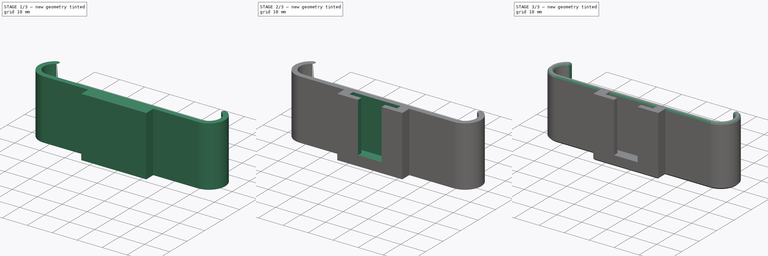
[diagram: build sequence overview — one tinted view per stage of 3, left to right]
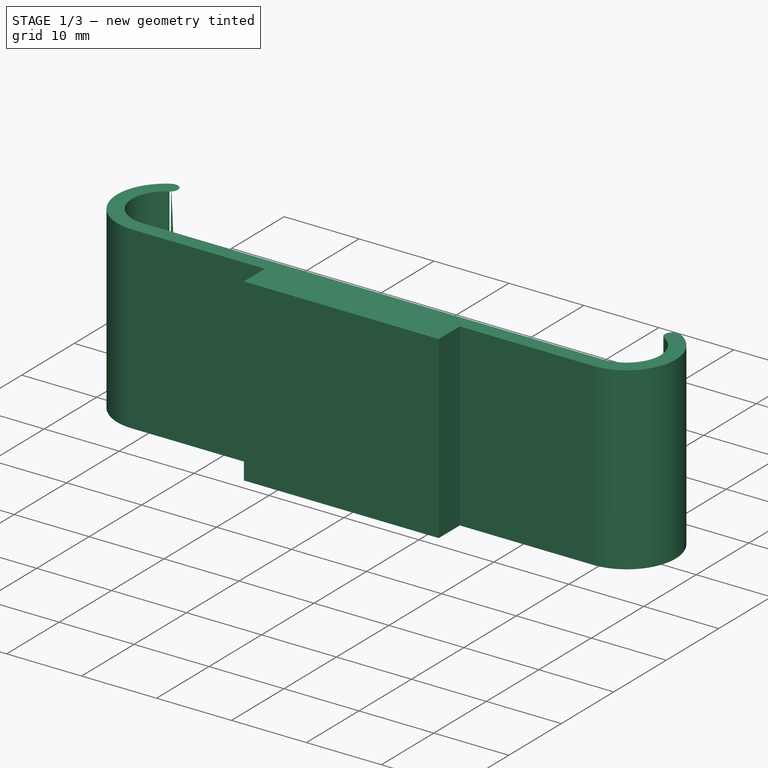
[diagram: stage 1 of 3 — iso view after this stage's code; geometry added in this stage tinted green]
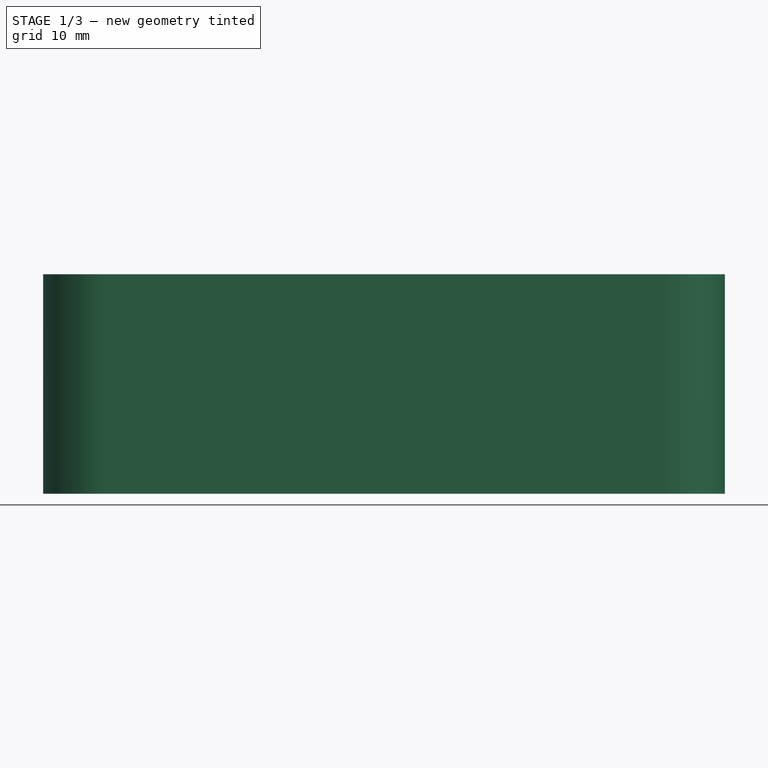
[diagram: stage 1 of 3 — front view after this stage's code; geometry added in this stage tinted green]
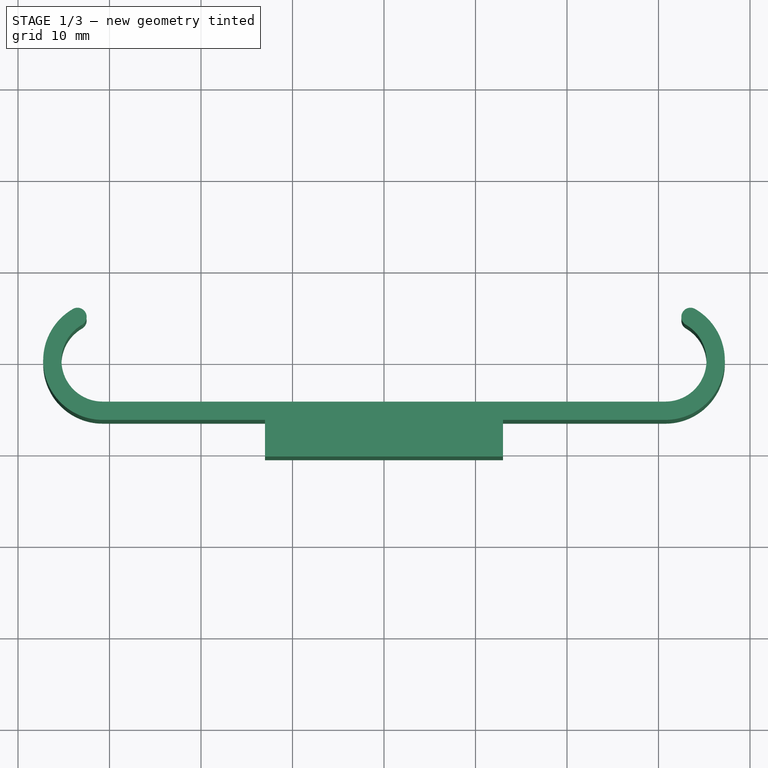
[diagram: stage 1 of 3 — top view after this stage's code; geometry added in this stage tinted green]
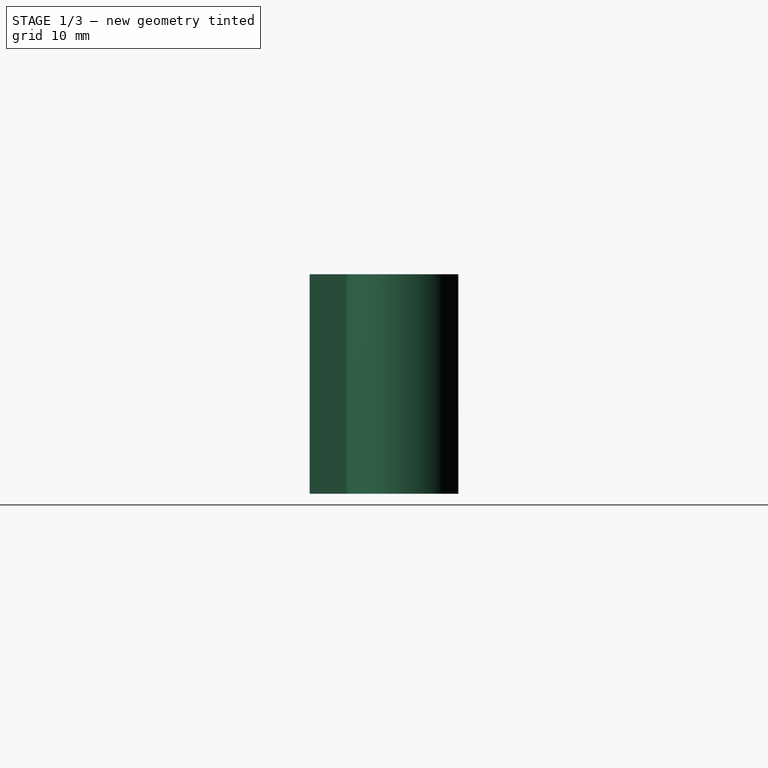
[diagram: stage 1 of 3 — right view after this stage's code; geometry added in this stage tinted green]
FCSTD DOCUMENT  (FreeCAD 0.19R23707 (Git))
Label: cold_shoe_smartphone_adapter_SM-530
License: All rights reserved
LicenseURL: http://en.wikipedia.org/wiki/All_rights_reserved
objects: Sketcher::SketchObject×3, PartDesign::Pad×2, PartDesign::ShapeBinder×2, PartDesign::Chamfer×2, PartDesign::Pocket×1, PartDesign::Body×1
note: 16 computed .brp shape members not serialized (recipe doc carries the construction recipe); baked Part::Feature solids carry a one-line shape summary decoded from their .brp

FEATURE [Sketcher::SketchObject] Sketch
  FullyConstrained = false
  MapMode = 5
  Support = -> [XY_Plane]
  sketch-geometry (20):
    g0: ArcOfCircle CenterX=-30.75 CenterY=0 CenterZ=0 NormalX=0 NormalY=0 NormalZ=1 AngleXU=0 Radius=4.5 StartAngle=1.5708 EndAngle=4.71239
    g1: ArcOfCircle CenterX=30.75 CenterY=0 CenterZ=0 NormalX=0 NormalY=0 NormalZ=1 AngleXU=0 Radius=4.5 StartAngle=4.71239 EndAngle=7.85398
    g2: LineSegment StartX=-30.75 StartY=-4.5 StartZ=0 EndX=30.75 EndY=-4.5 EndZ=0
    g3: LineSegment StartX=-30.75 StartY=4.5 StartZ=0 EndX=30.75 EndY=4.5 EndZ=0
    g4: ArcOfCircle CenterX=-30.75 CenterY=0 CenterZ=0 NormalX=0 NormalY=0 NormalZ=1 AngleXU=0 Radius=6.5 StartAngle=1.5708 EndAngle=4.71239
    g5: ArcOfCircle CenterX=30.75 CenterY=0 CenterZ=0 NormalX=0 NormalY=0 NormalZ=1 AngleXU=0 Radius=6.5 StartAngle=4.71239 EndAngle=7.85398
    g6: LineSegment StartX=-30.75 StartY=-6.5 StartZ=0 EndX=30.75 EndY=-6.5 EndZ=0
    g7: LineSegment StartX=-30.75 StartY=6.5 StartZ=0 EndX=30.75 EndY=6.5 EndZ=0
    g8: GeomPoint X=35.25 Y=0 Z=0
    g9: GeomPoint X=-35.25 Y=0 Z=0
    g10: LineSegment StartX=-30.75 StartY=-4.5 StartZ=0 EndX=30.75 EndY=-4.5 EndZ=0
    g11: LineSegment StartX=30.75 StartY=-6.5 StartZ=0 EndX=-30.75 EndY=-6.5 EndZ=0
    g12: LineSegment StartX=-30.75 StartY=0 StartZ=0 EndX=-36.2406 EndY=9.51005 EndZ=0
    g13: ArcOfCircle CenterX=-30.75 CenterY=0 CenterZ=0 NormalX=0 NormalY=0 NormalZ=1 AngleXU=0 Radius=4.5 StartAngle=2.0944 EndAngle=4.71239
    g14: ArcOfCircle CenterX=-30.75 CenterY=0 CenterZ=0 NormalX=0 NormalY=0 NormalZ=1 AngleXU=0 Radius=6.5 StartAngle=2.0944 EndAngle=4.71239
    g15: ArcOfCircle CenterX=-33.5 CenterY=4.76314 CenterZ=0 NormalX=0 NormalY=0 NormalZ=1 AngleXU=0 Radius=1 StartAngle=5.23599 EndAngle=8.37758
    g16: LineSegment StartX=30.75 StartY=0 StartZ=0 EndX=36.5121 EndY=9.98027 EndZ=0
    g17: ArcOfCircle CenterX=30.75 CenterY=0 CenterZ=0 NormalX=0 NormalY=0 NormalZ=1 AngleXU=0 Radius=4.5 StartAngle=4.71239 EndAngle=7.33038
    g18: ArcOfCircle CenterX=30.75 CenterY=0 CenterZ=0 NormalX=0 NormalY=0 NormalZ=1 AngleXU=0 Radius=6.5 StartAngle=4.71239 EndAngle=7.33038
    g19: ArcOfCircle CenterX=33.5 CenterY=4.76314 CenterZ=0 NormalX=0 NormalY=0 NormalZ=1 AngleXU=0 Radius=1 StartAngle=1.0472 EndAngle=4.18879
  constraints (47):
    c: Tangent(g0,g3) = 1.5708
    c: Tangent(g0,g2) = -1.5708
    c: Tangent(g2,g1) = -1.5708
    c: Tangent(g3,g1) = 1.5708
    c: Horizontal(g2)
    c: Symmetric(g1,g0,g-1)
    c: DistanceY(g1,g1) = 9
    c: Tangent(g4,g7) = 1.5708
    c: Tangent(g4,g6) = -1.5708
    c: Tangent(g6,g5) = -1.5708
    c: Tangent(g7,g5) = 1.5708
    c: Horizontal(g6)
    c: Coincident(g5,g1)
    c: Coincident(g4,g0)
    c: DistanceY(g5,g1) = 2
    c: PointOnObject(g8,g1)
    c: PointOnObject(g9,g0)
    c: PointOnObject(g9,g-1)
    c: PointOnObject(g8,g-1)
    c: DistanceX(g9,g8) = 70.5
    c: Coincident(g10,g0)
    c: Coincident(g10,g1)
    c: Coincident(g11,g5)
    c: Coincident(g11,g4)
    c: Coincident(g12,g0)
    c: Angle(g-1,g12) = 2.0944  'angle_opening'
    c: Horizontal(g3)
    c: PointOnObject(g13,g12)
    c: Coincident(g13,g10)
    c: Coincident(g13,g0)
    c: Coincident(g14,g13)
    c: Coincident(g14,g11)
    c: PointOnObject(g14,g12)
    c: PointOnObject(g15,g12)
    c: Coincident(g15,g14)
    c: Coincident(g15,g13)
    c: Coincident(g16,g1)
    c: Angle(g16,g-1) = 2.0944
    c: PointOnObject(g17,g16)
    c: Coincident(g17,g10)
    c: Coincident(g17,g1)
    c: Coincident(g18,g17)
    c: Coincident(g18,g11)
    c: PointOnObject(g18,g16)
    c: Coincident(g19,g18)
    c: Coincident(g19,g17)
    c: PointOnObject(g19,g16)
FEATURE [PartDesign::Pad] Pad
  Direction = (1,1,1)
  Length = 24
  Length2 = 100
  Profile = -> Sketch
  Type = 0
FEATURE [PartDesign::ShapeBinder] ShapeBinder
  Support = -> [Pad]
  TraceSupport = false
FEATURE [Sketcher::SketchObject] Sketch001
  ExternalGeometry = -> [Pad]
  FullyConstrained = true
  MapMode = 5
  Placement = pos=(0,-6.5,0) rot=(1,0,0;1.5708rad)
  Support = -> [ShapeBinder]
  sketch-geometry (5):
    g0: LineSegment StartX=-13 StartY=24 StartZ=0 EndX=13 EndY=24 EndZ=0
    g1: LineSegment StartX=13 StartY=24 StartZ=0 EndX=13 EndY=0 EndZ=0
    g2: LineSegment StartX=13 StartY=0 StartZ=0 EndX=-13 EndY=0 EndZ=0
    g3: LineSegment StartX=-13 StartY=0 StartZ=0 EndX=-13 EndY=24 EndZ=0
    g4: GeomPoint X=0 Y=12 Z=0
  constraints (13):
    c: Coincident(g0,g1)
    c: Coincident(g1,g2)
    c: Coincident(g2,g3)
    c: Coincident(g3,g0)
    c: Horizontal(g0)
    c: Horizontal(g2)
    c: Vertical(g1)
    c: Vertical(g3)
    c: PointOnObject(g1,g-1)
    c: PointOnObject(g4,g-2)
    c: Symmetric(g0,g2,g4)
    c: PointOnObject(g0,g-3)
    c: DistanceX(g0,g0) = 26
FEATURE [PartDesign::Pad] Pad001
  BaseFeature = -> Pad
  Direction = (1,1,1)
  Length = 4
  Length2 = 100
  Profile = -> Sketch001
  Type = 0
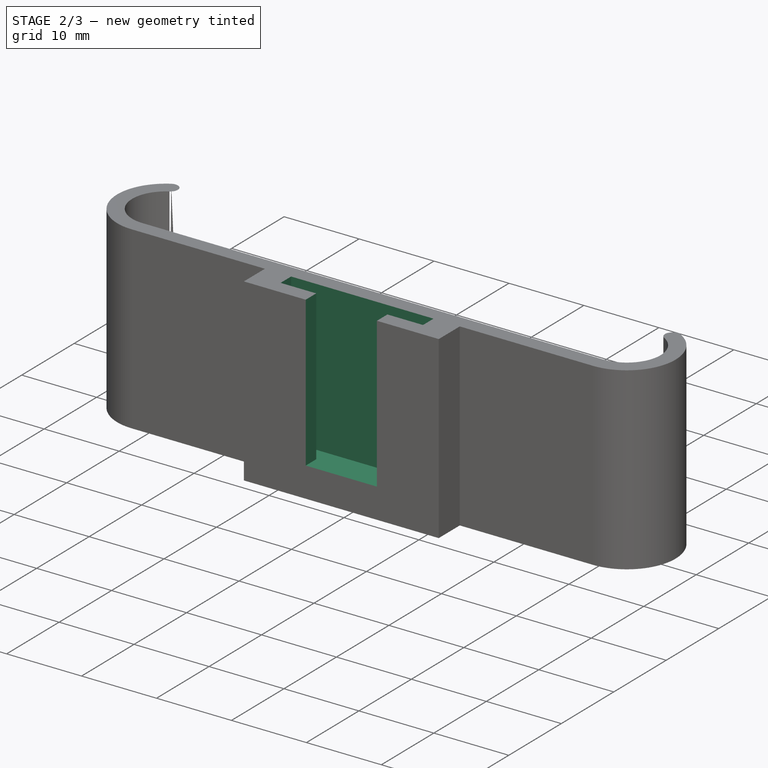
[diagram: stage 2 of 3 — iso view after this stage's code; geometry added in this stage tinted green]
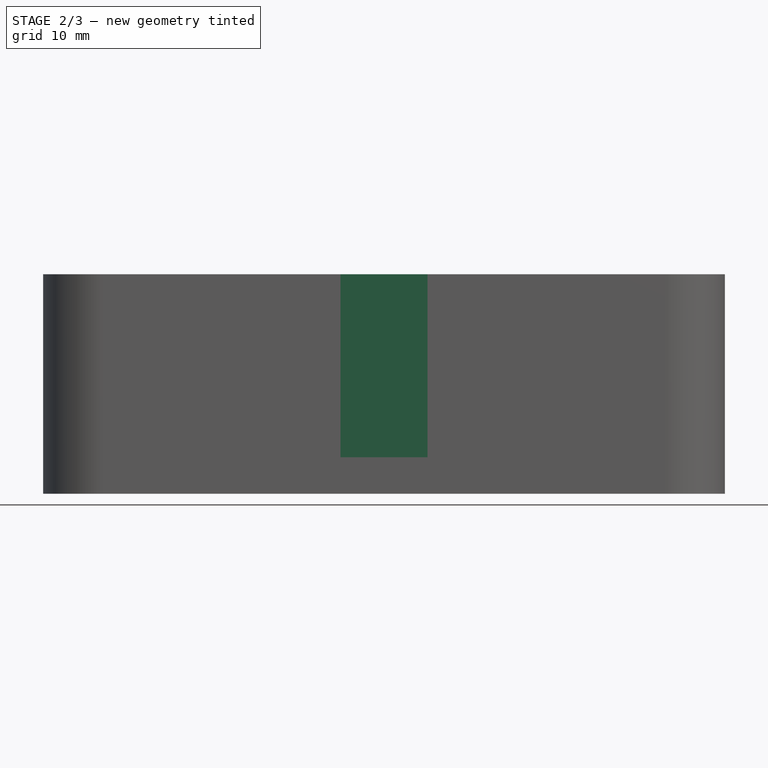
[diagram: stage 2 of 3 — front view after this stage's code; geometry added in this stage tinted green]
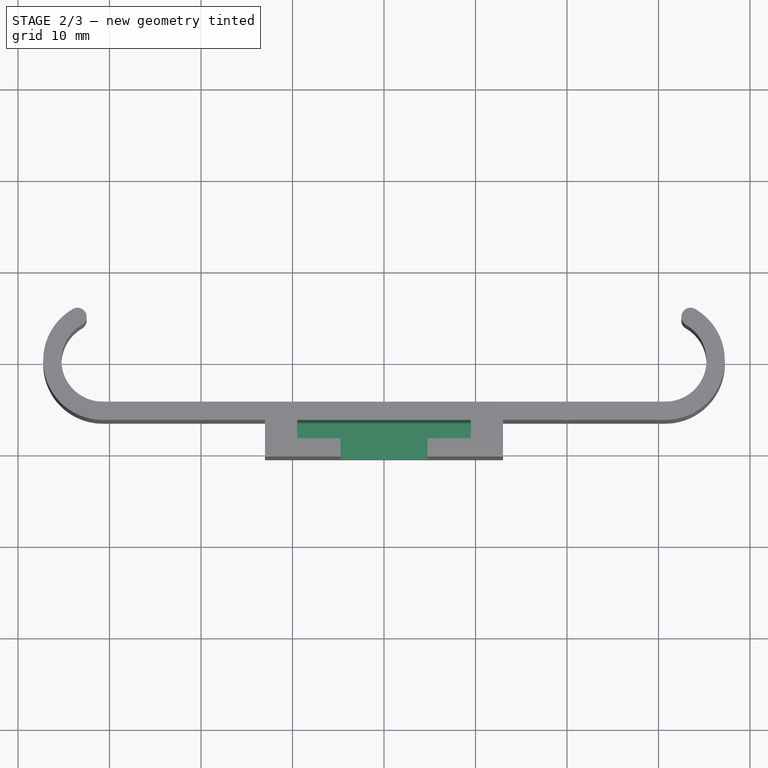
[diagram: stage 2 of 3 — top view after this stage's code; geometry added in this stage tinted green]
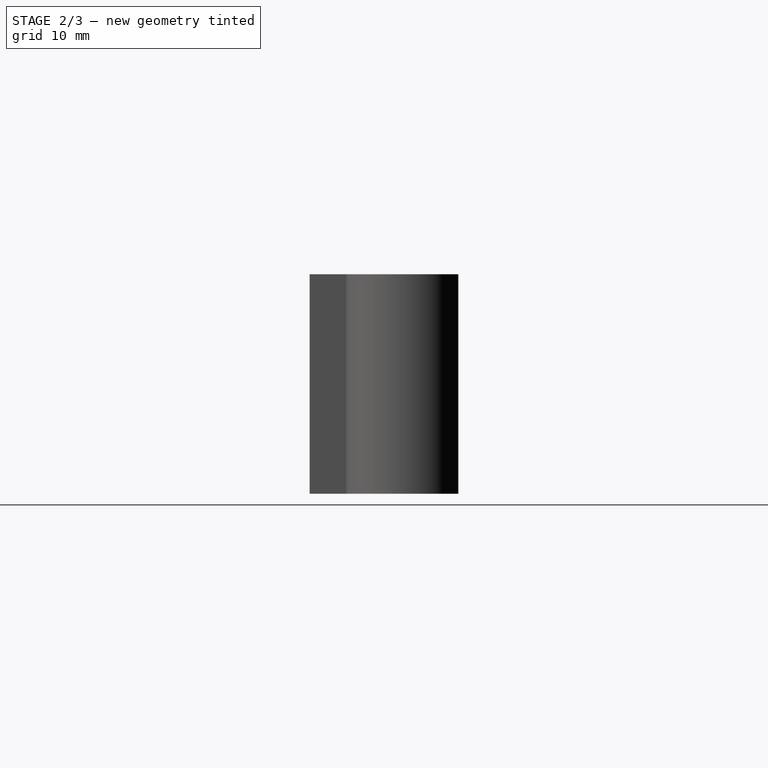
[diagram: stage 2 of 3 — right view after this stage's code; geometry added in this stage tinted green]
FEATURE [PartDesign::ShapeBinder] ShapeBinder001
  Support = -> [Pad001]
  TraceSupport = false
FEATURE [Sketcher::SketchObject] Sketch002
  ExternalGeometry = -> [Pad001]
  FullyConstrained = true
  MapMode = 5
  Placement = pos=(0,5.3e-15,24) rot=(0,0,1;0rad)
  Support = -> [ShapeBinder001]
  sketch-geometry (16):
    g0: LineSegment StartX=-9.5 StartY=-6.5 StartZ=0 EndX=9.5 EndY=-6.5 EndZ=0
    g1: LineSegment StartX=9.5 StartY=-6.5 StartZ=0 EndX=9.5 EndY=-8.5 EndZ=0
    g2: LineSegment StartX=9.5 StartY=-8.5 StartZ=0 EndX=-9.5 EndY=-8.5 EndZ=0
    g3: LineSegment StartX=-9.5 StartY=-8.5 StartZ=0 EndX=-9.5 EndY=-6.5 EndZ=0
    g4: LineSegment StartX=-4.75 StartY=-10.5 StartZ=0 EndX=4.75 EndY=-10.5 EndZ=0
    g5: LineSegment StartX=4.75 StartY=-10.5 StartZ=0 EndX=4.75 EndY=-8.5 EndZ=0
    g6: LineSegment StartX=4.75 StartY=-8.5 StartZ=0 EndX=-4.75 EndY=-8.5 EndZ=0
    g7: LineSegment StartX=-4.75 StartY=-8.5 StartZ=0 EndX=-4.75 EndY=-10.5 EndZ=0
    g8: LineSegment StartX=-9.5 StartY=-8.5 StartZ=0 EndX=-9.5 EndY=-6.5 EndZ=0
    g9: LineSegment StartX=-9.5 StartY=-6.5 StartZ=0 EndX=9.5 EndY=-6.5 EndZ=0
    g10: LineSegment StartX=9.5 StartY=-6.5 StartZ=0 EndX=9.5 EndY=-8.5 EndZ=0
    g11: LineSegment StartX=9.5 StartY=-8.5 StartZ=0 EndX=4.75 EndY=-8.5 EndZ=0
    g12: LineSegment StartX=4.75 StartY=-8.5 StartZ=0 EndX=4.75 EndY=-10.5 EndZ=0
    g13: LineSegment StartX=4.75 StartY=-10.5 StartZ=0 EndX=-4.75 EndY=-10.5 EndZ=0
    g14: LineSegment StartX=-4.75 StartY=-10.5 StartZ=0 EndX=-4.75 EndY=-8.5 EndZ=0
    g15: LineSegment StartX=-4.75 StartY=-8.5 StartZ=0 EndX=-9.5 EndY=-8.5 EndZ=0
  constraints (38):
    c: Coincident(g0,g1)
    c: Coincident(g1,g2)
    c: Coincident(g2,g3)
    c: Coincident(g3,g0)
    c: Horizontal(g0)
    c: Vertical(g1)
    c: Vertical(g3)
    c: Coincident(g4,g5)
    c: Coincident(g5,g6)
    c: Coincident(g6,g7)
    c: Coincident(g7,g4)
    c: Horizontal(g6)
    c: Vertical(g5)
    c: Vertical(g7)
    c: PointOnObject(g5,g2)
    c: Symmetric(g4,g4,g-2)
    c: Symmetric(g1,g2,g-2)
    c: DistanceY(g5,g5) = 2
    c: PointOnObject(g4,g-3)
    c: DistanceY(g1,g1) = 2
    c: DistanceX(g0,g0) = 19
    c: DistanceX(g4,g4) = 9.5
    c: Coincident(g2,g8)
    c: Coincident(g8,g0)
    c: Coincident(g8,g9)
    c: Coincident(g9,g0)
    c: Coincident(g9,g10)
    c: Coincident(g10,g1)
    c: Coincident(g10,g11)
    c: Coincident(g11,g5)
    c: Coincident(g11,g12)
    c: Coincident(g12,g4)
    c: Coincident(g12,g13)
    c: Coincident(g13,g4)
    c: Coincident(g13,g14)
    c: Coincident(g14,g6)
    c: Coincident(g14,g15)
    c: Coincident(g15,g8)
FEATURE [PartDesign::Pocket] Pocket
  BaseFeature = -> Pad001
  Length = 20
  Length2 = 100
  Profile = -> Sketch002
  Type = 0
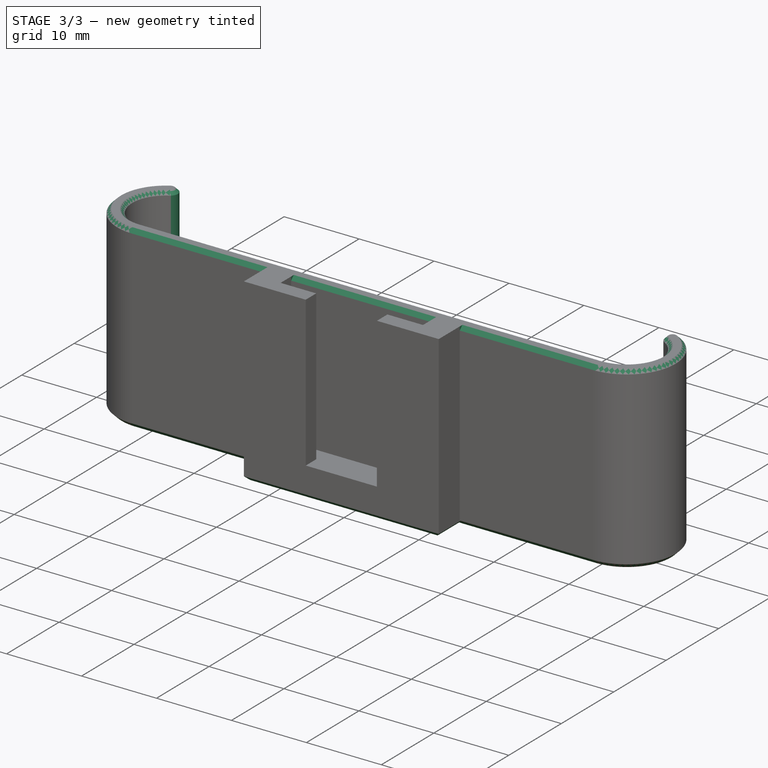
[diagram: stage 3 of 3 — iso view after this stage's code; geometry added in this stage tinted green]
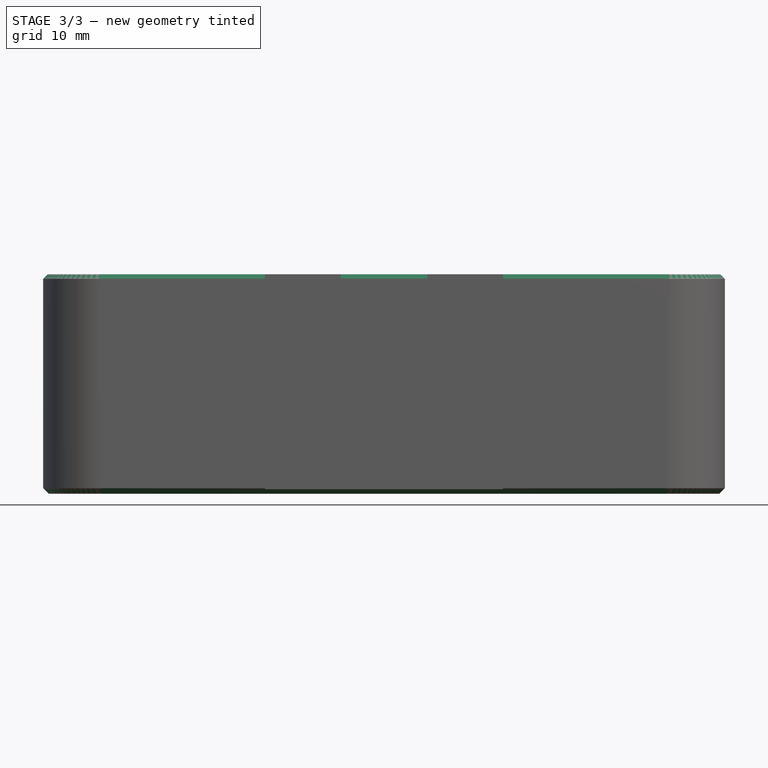
[diagram: stage 3 of 3 — front view after this stage's code; geometry added in this stage tinted green]
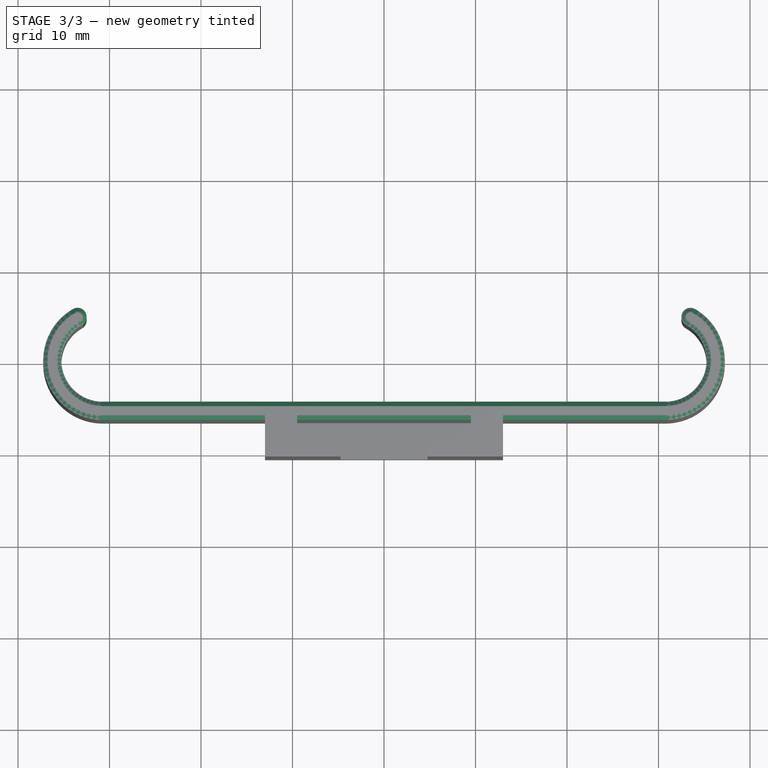
[diagram: stage 3 of 3 — top view after this stage's code; geometry added in this stage tinted green]
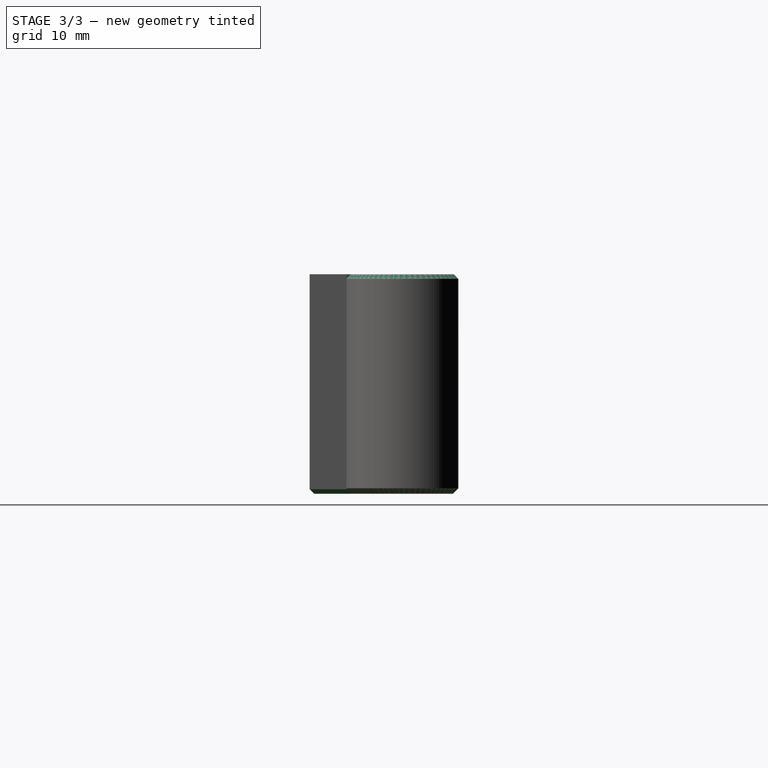
[diagram: stage 3 of 3 — right view after this stage's code; geometry added in this stage tinted green]
FEATURE [PartDesign::Chamfer] Chamfer
  Angle = 45
  Base = -> Pocket [Face4]
  BaseFeature = -> Pocket
  ChamferType = 0
  FlipDirection = false
  Size = 0.6
  Size2 = 1
  SupportTransform = false
FEATURE [PartDesign::Chamfer] Chamfer001
  Angle = 45
  Base = -> Chamfer [Face4,Face20]
  BaseFeature = -> Chamfer
  ChamferType = 0
  FlipDirection = false
  Size = 0.5
  Size2 = 1
  SupportTransform = false
FEATURE [PartDesign::Body] Body
  Group = -> [Sketch,Pad,ShapeBinder,Sketch001,Pad001,ShapeBinder001,Sketch002,Pocket,Chamfer,Chamfer001]
  Origin = -> Origin
  Tip = -> Chamfer001
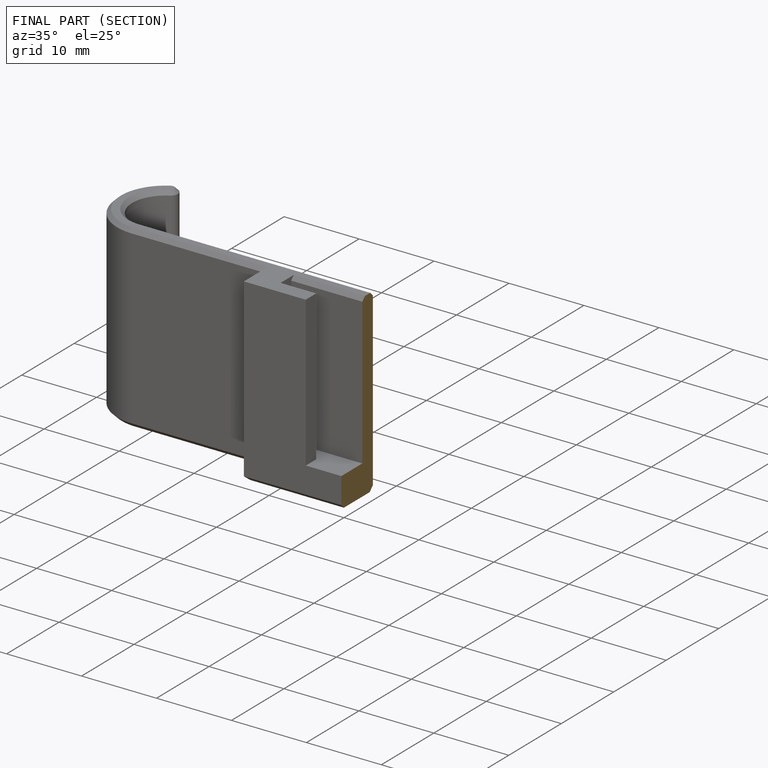
[diagram: finished part — half-section view (interior)]
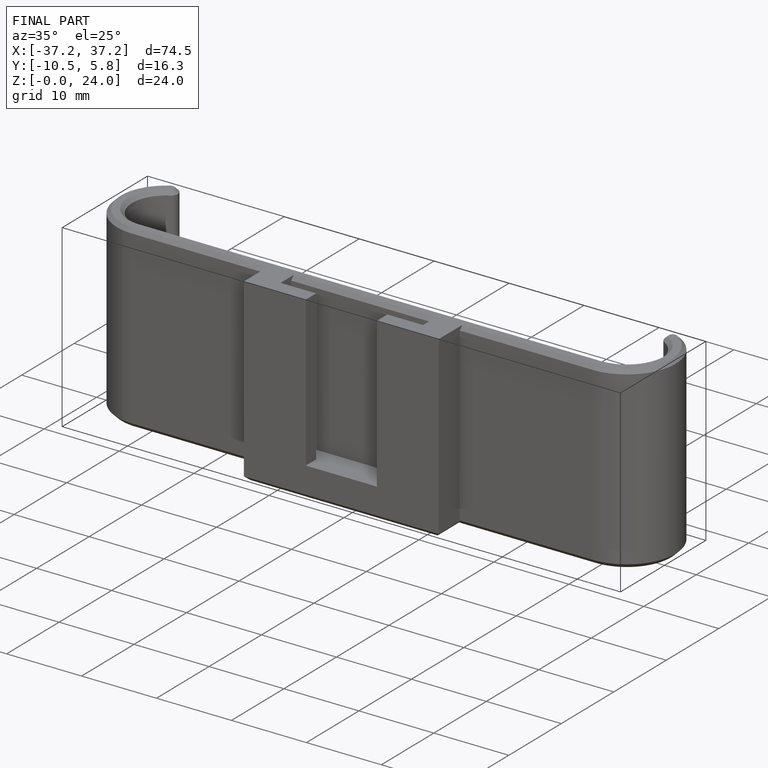
[diagram: finished part — iso view with bounding-box wireframe]
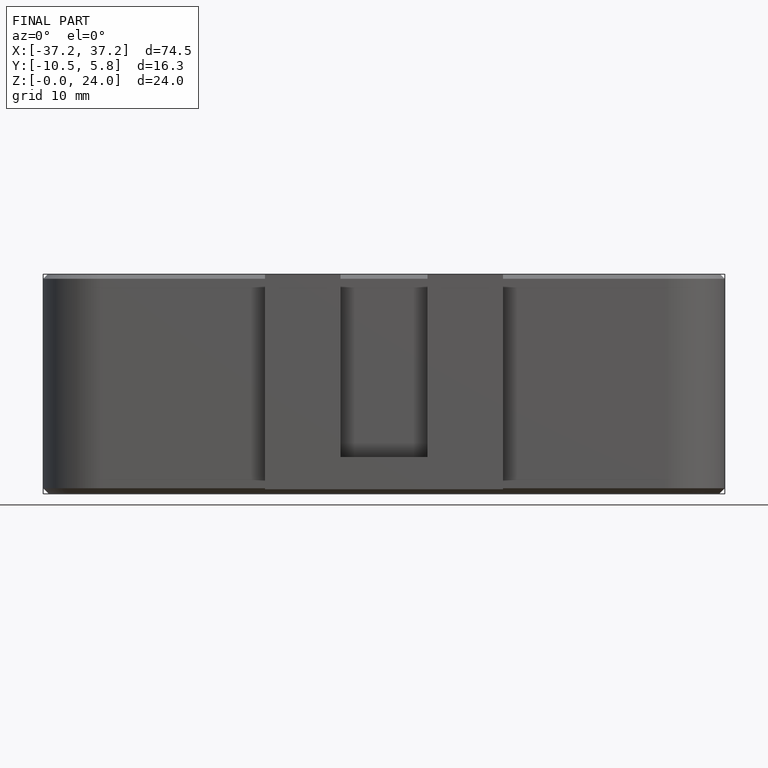
[diagram: finished part — front view with bounding-box wireframe]
